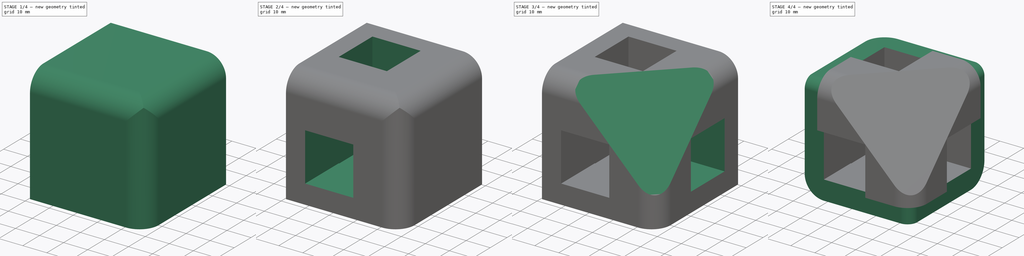
[diagram: build sequence overview — one tinted view per stage of 4, left to right]
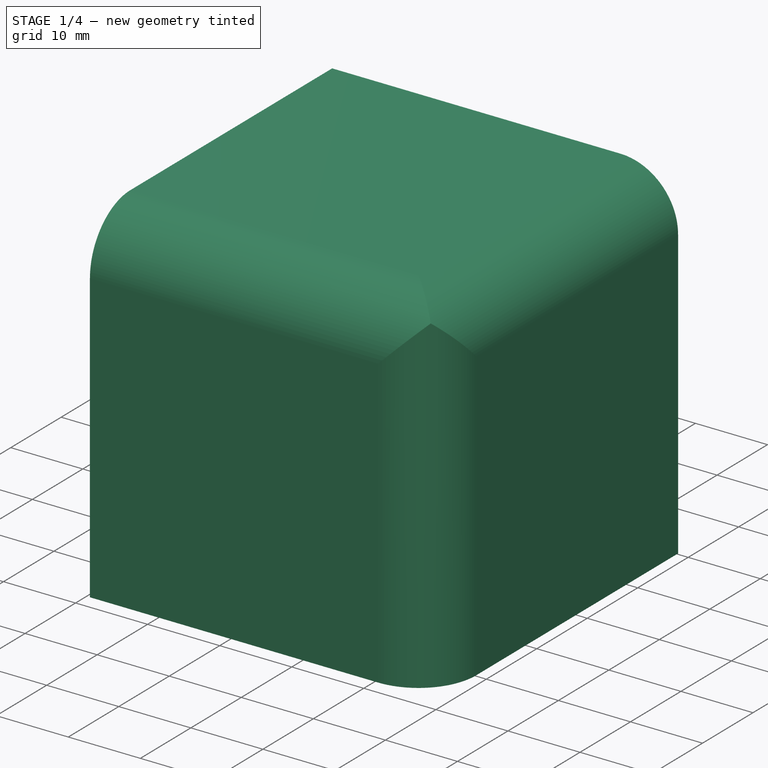
[diagram: stage 1 of 4 — iso view after this stage's code; geometry added in this stage tinted green]
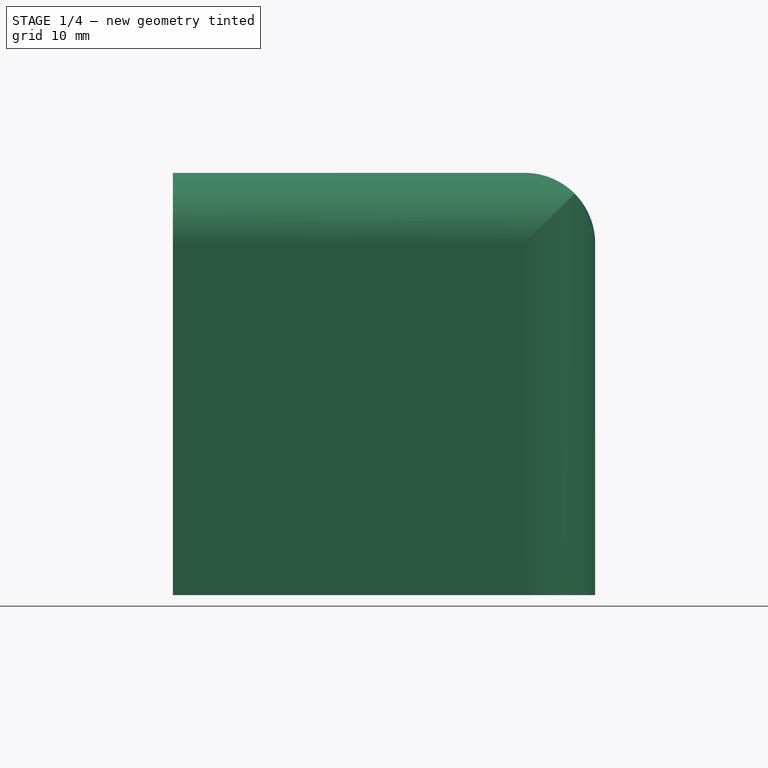
[diagram: stage 1 of 4 — front view after this stage's code; geometry added in this stage tinted green]
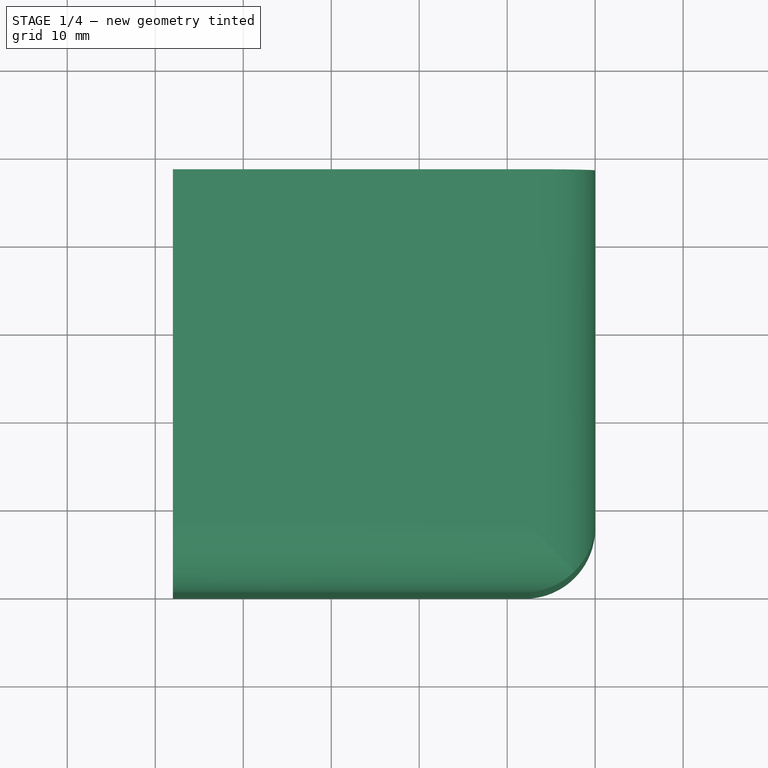
[diagram: stage 1 of 4 — top view after this stage's code; geometry added in this stage tinted green]
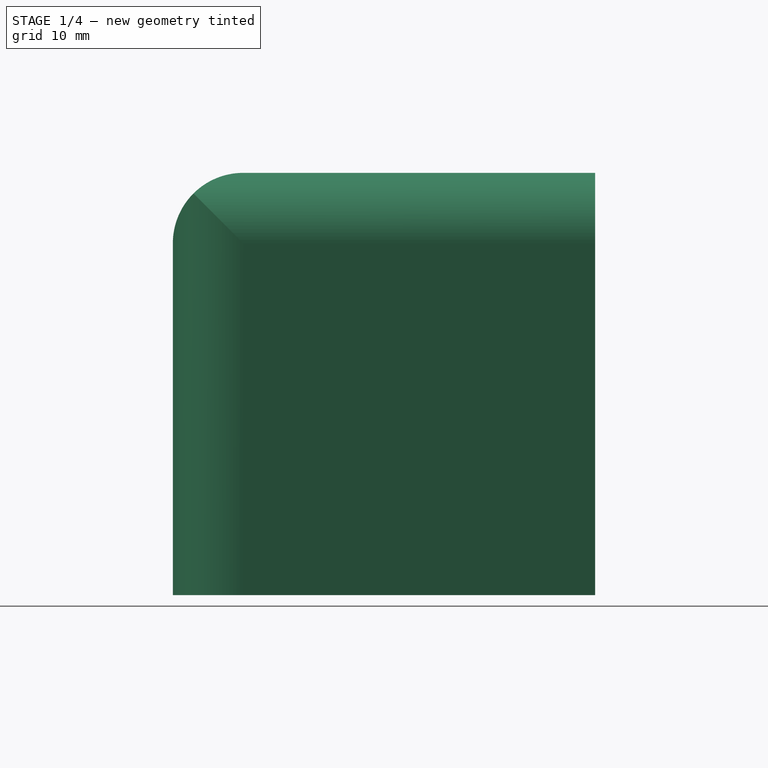
[diagram: stage 1 of 4 — right view after this stage's code; geometry added in this stage tinted green]
FCSTD DOCUMENT  (FreeCAD 1.0R39109 (Git))
Label: frame-corner
License: All rights reserved
LicenseURL: http://en.wikipedia.org/wiki/All_rights_reserved
objects: Sketcher::SketchObject×7, PartDesign::Pocket×6, PartDesign::PolarPattern×3, PartDesign::Pad×1, PartDesign::Line×1, PartDesign::Plane×1, PartDesign::Fillet×1, PartDesign::Body×1
note: 47 computed .brp shape members not serialized (recipe doc carries the construction recipe); baked Part::Feature solids carry a one-line shape summary decoded from their .brp

FEATURE [Sketcher::SketchObject] Sketch255
  ArcFitTolerance = 0
  AttachmentSupport = -> [XY_Plane256]
  FullyConstrained = true
  MakeInternals = false
  MapMode = 5
  sketch-geometry (5):
    g0: LineSegment StartX=-18 StartY=18 StartZ=0 EndX=30 EndY=18 EndZ=0
    g1: LineSegment StartX=30 StartY=18 StartZ=0 EndX=30 EndY=-30 EndZ=0
    g2: LineSegment StartX=30 StartY=-30 StartZ=0 EndX=-18 EndY=-30 EndZ=0
    g3: LineSegment StartX=-18 StartY=-30 StartZ=0 EndX=-18 EndY=18 EndZ=0
    g4: GeomPoint [constr] X=14 Y=0 Z=0
  constraints (14):
    c: Coincident(g0,g1)
    c: Coincident(g1,g2)
    c: Coincident(g2,g3)
    c: Coincident(g3,g0)
    c: Horizontal(g0)
    c: Horizontal(g2)
    c: Vertical(g1)
    c: Vertical(g3)
    c: DistanceX(g0) = -18
    c: DistanceY(g0) = 18
    c: Equal(g3,g0)
    c: PointOnObject(g4,g-1)
    c: DistanceX(g-1,g4) = 14
    c: DistanceX(g4,g0) = 16
FEATURE [PartDesign::Pad] Pad060
  Direction = (0,0,1)
  Length = 30
  Length2 = 18
  Profile = -> Sketch255
  ReferenceAxis = -> Sketch255 [N_Axis]
  Suppressed = false
  Type = 4
FEATURE [Sketcher::SketchObject] Sketch256
  ArcFitTolerance = 0
  AttachmentOffset = pos=(0,0,14) rot=(0,0,1;0rad)
  AttachmentSupport = -> [XY_Plane256]
  FullyConstrained = true
  MakeInternals = false
  MapMode = 5
  Placement = pos=(0,0,14) rot=(0,0,1;0rad)
  sketch-geometry (3):
    g0: ArcOfCircle CenterX=22 CenterY=-22 CenterZ=0 NormalX=0 NormalY=0 NormalZ=1 AngleXU=0 Radius=8 StartAngle=4.71239 EndAngle=6.28319
    g1: LineSegment StartX=22 StartY=-30 StartZ=0 EndX=30 EndY=-30 EndZ=0
    g2: LineSegment StartX=30 StartY=-30 StartZ=0 EndX=30 EndY=-22 EndZ=0
  constraints (8):
    c: Coincident(g1,g2)
    c: Vertical(g2)
    c: Horizontal(g1)
    c: Tangent(g2,g0) = -1.5708
    c: Tangent(g0,g1) = -1.5708
    c: DistanceX(g1) = 30
    c: DistanceY(g1) = -30
    c: Radius(g0) = 8
FEATURE [PartDesign::Pocket] Pocket152
  BaseFeature = -> Pad060
  Direction = (0,0,-1)
  Length = 5
  Length2 = 5
  Midplane = true
  Profile = -> Sketch256
  ReferenceAxis = -> Sketch256 [N_Axis]
  Suppressed = false
  Type = 1
FEATURE [Sketcher::SketchObject] Sketch257
  ArcFitTolerance = 0
  AttachmentOffset = pos=(0,0,0) rot=(0,-1,0;0.785398rad)
  AttachmentSupport = -> [XZ_Plane256]
  FullyConstrained = true
  MakeInternals = false
  MapMode = 5
  Placement = pos=(0,0,0) rot=(0.862856,-0.357407,-0.357407;1.71777rad)
  sketch-geometry (7):
    g0: LineSegment [constr] StartX=-7.07107 StartY=5 StartZ=0 EndX=7.07107 EndY=5 EndZ=0
    g1: LineSegment [constr] StartX=7.07107 StartY=5 StartZ=0 EndX=7.07107 EndY=-5 EndZ=0
    g2: LineSegment [constr] StartX=7.07107 StartY=-5 StartZ=0 EndX=-7.07107 EndY=-5 EndZ=0
    g3: LineSegment [constr] StartX=-7.07107 StartY=-5 StartZ=0 EndX=-7.07107 EndY=5 EndZ=0
    g4: LineSegment [constr] StartX=-7.07107 StartY=5 StartZ=0 EndX=0 EndY=12.0711 EndZ=0
    g5: LineSegment [constr] StartX=0 StartY=12.0711 StartZ=0 EndX=7.07107 EndY=5 EndZ=0
    g6: LineSegment StartX=-7.07107 StartY=-5 StartZ=0 EndX=7.07107 EndY=5 EndZ=0
  constraints (18):
    c: Coincident(g0,g1)
    c: Coincident(g1,g2)
    c: Coincident(g2,g3)
    c: Coincident(g3,g0)
    c: Horizontal(g0)
    c: Horizontal(g2)
    c: Vertical(g1)
    c: Vertical(g3)
    c: Symmetric(g1,g0,g-1)
    c: Coincident(g4,g0)
    c: PointOnObject(g4,g-2)
    c: Coincident(g5,g4)
    c: Coincident(g5,g0)
    c: Perpendicular(g5,g4)
    c: Distance(g4) = 10
    c: DistanceY(g1,g1) = 10
    c: Coincident(g6,g2)
    c: Coincident(g6,g0)
FEATURE [PartDesign::Line] DatumLine
  AttacherType = Attacher::AttachEngineLine
  AttachmentSupport = -> [Sketch257]
  Length = 20
  MapMode = 29
  Placement = pos=(0,0,0) rot=(-0.345235,0.833472,0.431437;3.49527rad)
  ResizeMode = 0
FEATURE [PartDesign::PolarPattern] PolarPattern006
  Angle = 360
  Axis = -> DatumLine
  BaseFeature = -> Pocket152
  Mode = 0
  Occurrences = 3
  Offset = 120
  Originals = -> [Pocket152]
  Suppressed = false
  TransformMode = 0
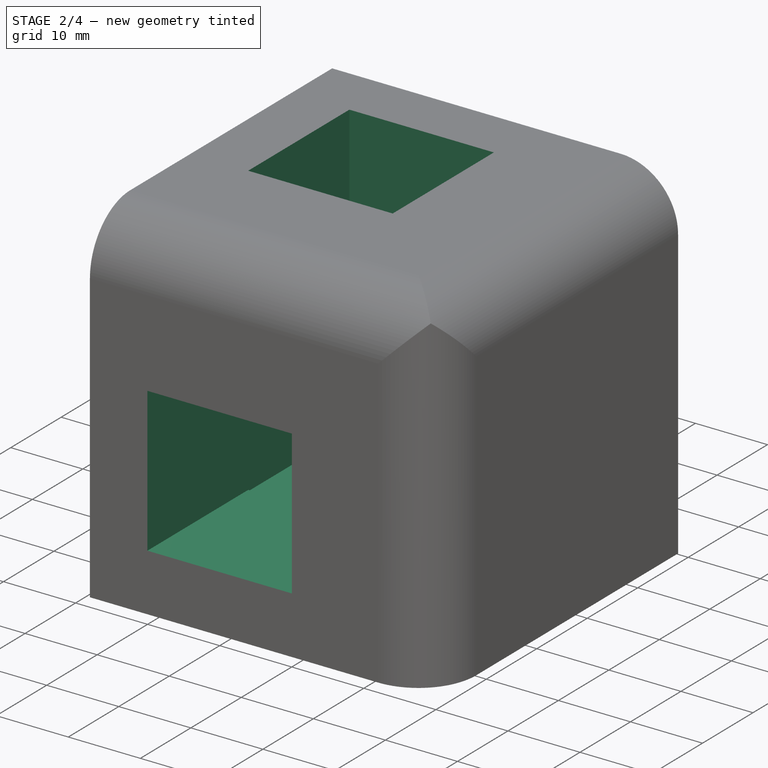
[diagram: stage 2 of 4 — iso view after this stage's code; geometry added in this stage tinted green]
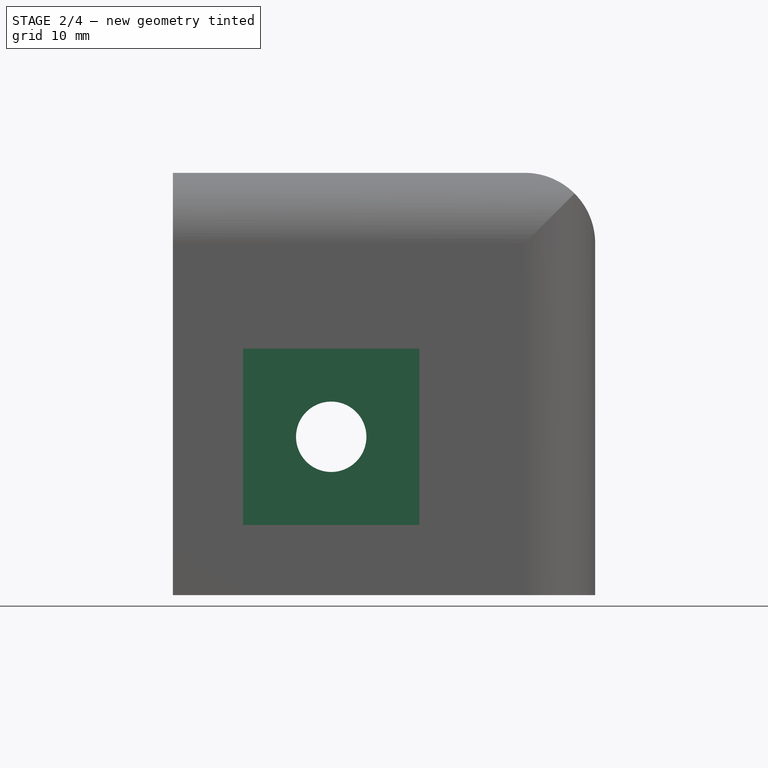
[diagram: stage 2 of 4 — front view after this stage's code; geometry added in this stage tinted green]
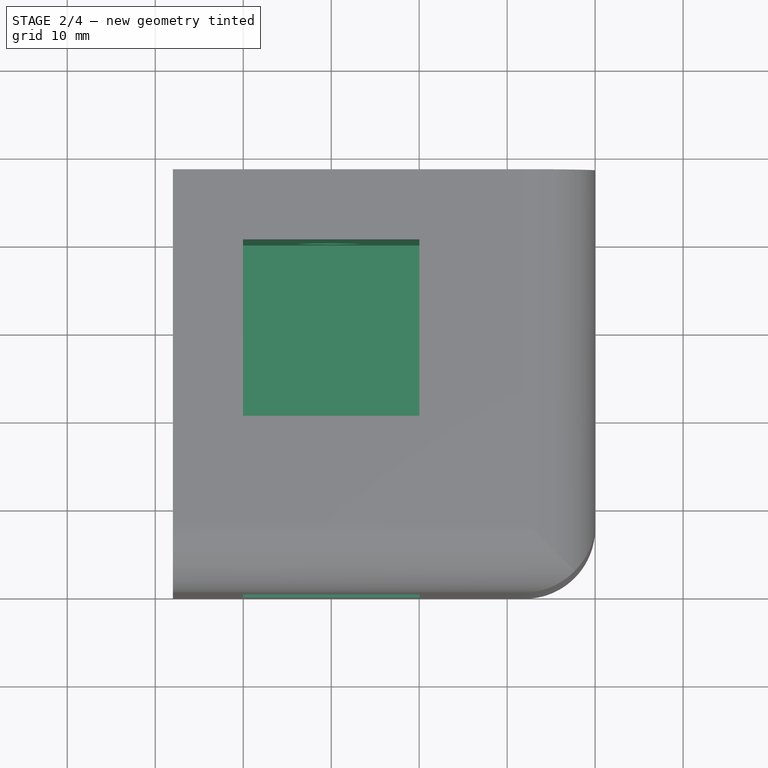
[diagram: stage 2 of 4 — top view after this stage's code; geometry added in this stage tinted green]
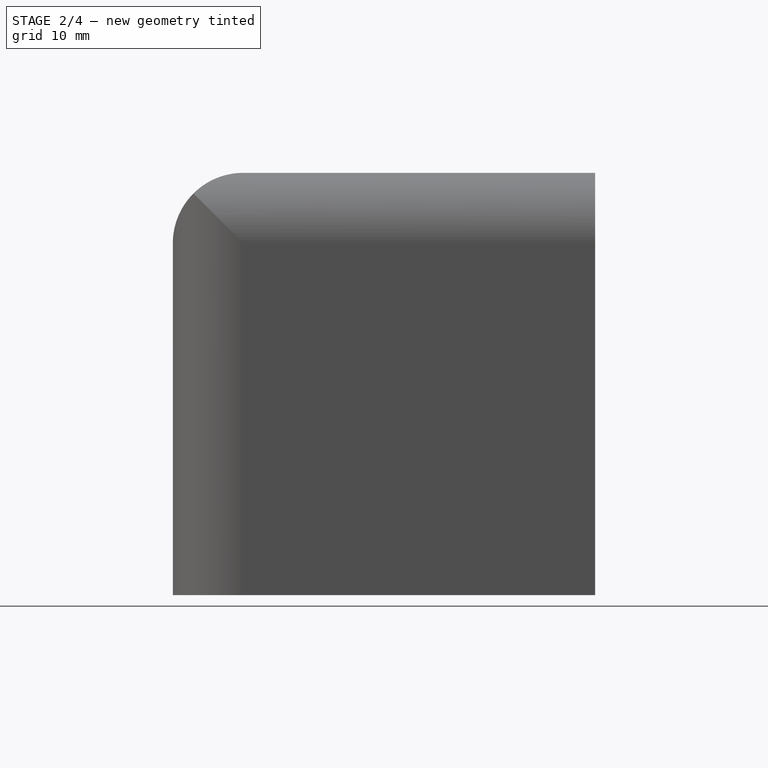
[diagram: stage 2 of 4 — right view after this stage's code; geometry added in this stage tinted green]
FEATURE [Sketcher::SketchObject] Sketch258
  ArcFitTolerance = 0
  AttachmentOffset = pos=(0,0,-10.2) rot=(0,0,1;0rad)
  AttachmentSupport = -> [XY_Plane256]
  FullyConstrained = true
  MakeInternals = false
  MapMode = 5
  Placement = pos=(0,0,-10.2) rot=(0,0,1;0rad)
  sketch-geometry (4):
    g0: LineSegment StartX=-10.025 StartY=10.025 StartZ=0 EndX=10.025 EndY=10.025 EndZ=0
    g1: LineSegment StartX=10.025 StartY=10.025 StartZ=0 EndX=10.025 EndY=-10.025 EndZ=0
    g2: LineSegment StartX=10.025 StartY=-10.025 StartZ=0 EndX=-10.025 EndY=-10.025 EndZ=0
    g3: LineSegment StartX=-10.025 StartY=-10.025 StartZ=0 EndX=-10.025 EndY=10.025 EndZ=0
  constraints (11):
    c: Coincident(g0,g1)
    c: Coincident(g1,g2)
    c: Coincident(g2,g3)
    c: Coincident(g3,g0)
    c: Horizontal(g0)
    c: Horizontal(g2)
    c: Vertical(g1)
    c: Vertical(g3)
    c: Symmetric(g1,g0,g-1)
    c: Equal(g0,g1)
    c: DistanceX(g0,g0) = 20.05
FEATURE [PartDesign::Pocket] Pocket153
  BaseFeature = -> PolarPattern006
  Direction = (0,0,-1)
  Length = 10
  Length2 = 5
  Profile = -> Sketch258
  ReferenceAxis = -> Sketch258 [N_Axis]
  Reversed = true
  Suppressed = false
  Type = 1
FEATURE [Sketcher::SketchObject] Sketch259
  ArcFitTolerance = 0
  AttachmentOffset = pos=(0,0,10) rot=(0,0,1;0rad)
  AttachmentSupport = -> [XZ_Plane256]
  FullyConstrained = true
  MakeInternals = false
  MapMode = 5
  Placement = pos=(0,-10,2.2e-15) rot=(1,0,0;1.5708rad)
  sketch-geometry (4):
    g0: LineSegment StartX=-10.025 StartY=10.025 StartZ=0 EndX=10.025 EndY=10.025 EndZ=0
    g1: LineSegment StartX=10.025 StartY=10.025 StartZ=0 EndX=10.025 EndY=-10.025 EndZ=0
    g2: LineSegment StartX=10.025 StartY=-10.025 StartZ=0 EndX=-10.025 EndY=-10.025 EndZ=0
    g3: LineSegment StartX=-10.025 StartY=-10.025 StartZ=0 EndX=-10.025 EndY=10.025 EndZ=0
  constraints (11):
    c: Coincident(g0,g1)
    c: Coincident(g1,g2)
    c: Coincident(g2,g3)
    c: Coincident(g3,g0)
    c: Horizontal(g0)
    c: Horizontal(g2)
    c: Vertical(g1)
    c: Vertical(g3)
    c: Symmetric(g1,g0,g-1)
    c: Equal(g0,g1)
    c: DistanceX(g0,g0) = 20.05
FEATURE [PartDesign::Pocket] Pocket154
  BaseFeature = -> Pocket153
  Direction = (0,1,-2e-16)
  Length = 5
  Length2 = 5
  Profile = -> Sketch259
  ReferenceAxis = -> Sketch259 [N_Axis]
  Reversed = true
  Suppressed = false
  Type = 1
FEATURE [Sketcher::SketchObject] Sketch260
  ArcFitTolerance = 0
  AttachmentSupport = -> [XZ_Plane256]
  FullyConstrained = true
  MakeInternals = false
  MapMode = 5
  Placement = pos=(0,0,0) rot=(1,0,0;1.5708rad)
  sketch-geometry (1):
    g0: Circle CenterX=0 CenterY=0 CenterZ=0 NormalX=0 NormalY=0 NormalZ=1 AngleXU=0 Radius=4
  constraints (2):
    c: Coincident(g0,g-1)
    c: Diameter(g0) = 8
FEATURE [PartDesign::Pocket] Pocket155
  BaseFeature = -> Pocket154
  Direction = (0,1,-2e-16)
  Length = 5
  Length2 = 5
  Midplane = true
  Profile = -> Sketch260
  ReferenceAxis = -> Sketch260 [N_Axis]
  Suppressed = false
  Type = 1
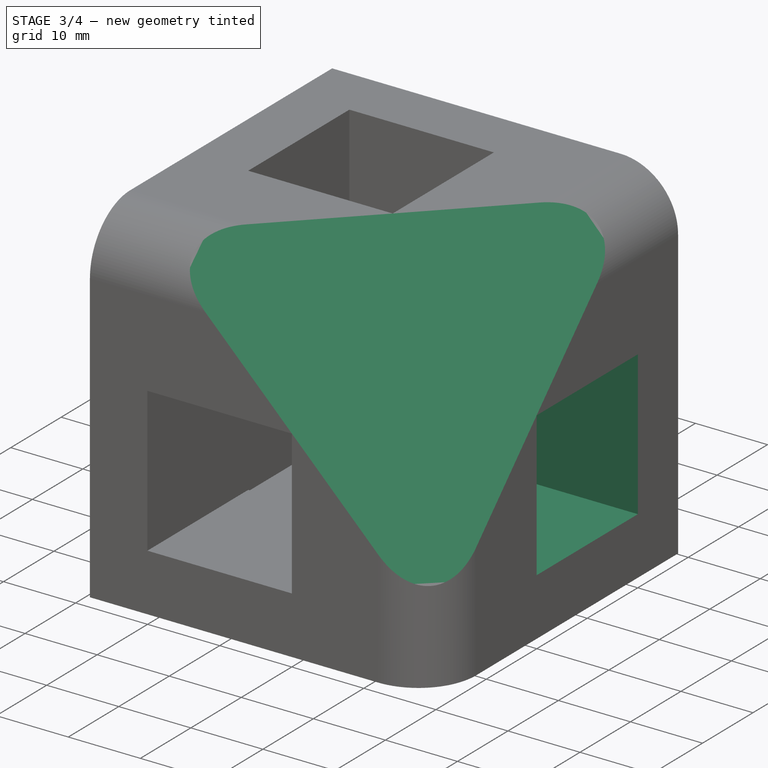
[diagram: stage 3 of 4 — iso view after this stage's code; geometry added in this stage tinted green]
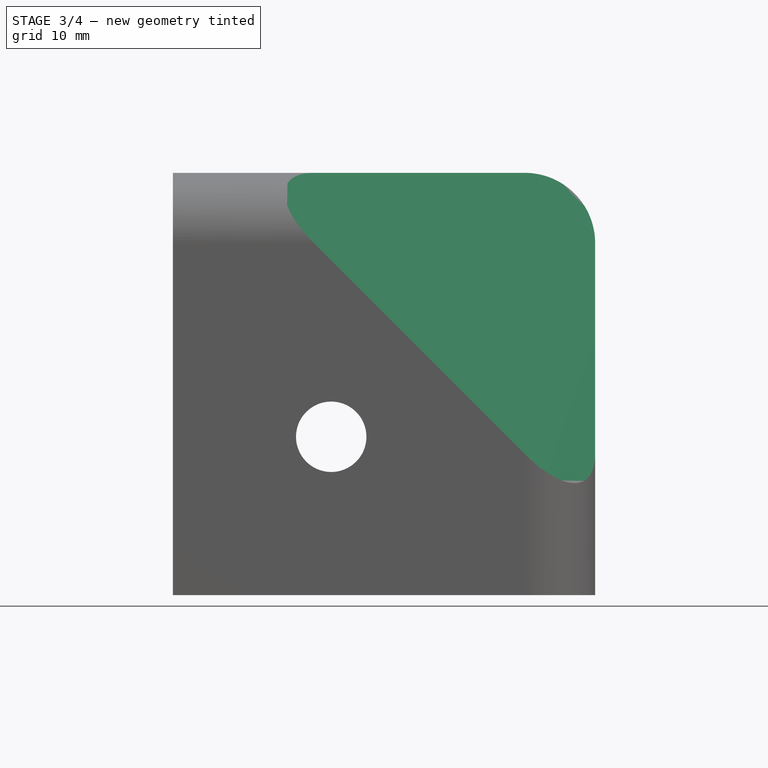
[diagram: stage 3 of 4 — front view after this stage's code; geometry added in this stage tinted green]
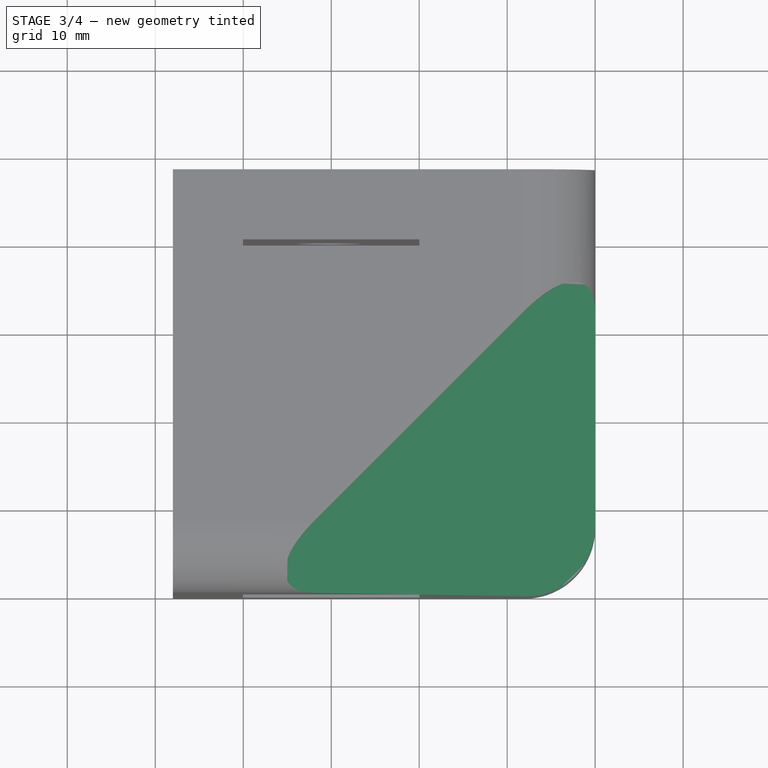
[diagram: stage 3 of 4 — top view after this stage's code; geometry added in this stage tinted green]
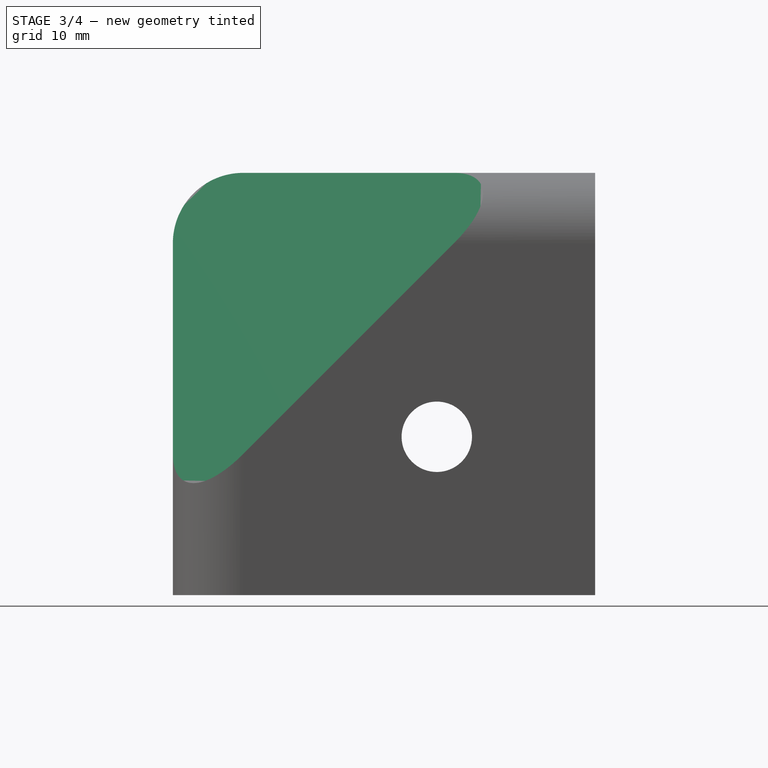
[diagram: stage 3 of 4 — right view after this stage's code; geometry added in this stage tinted green]
FEATURE [PartDesign::PolarPattern] PolarPattern007
  Angle = 90
  Axis = -> Z_Axis256
  BaseFeature = -> Pocket155
  Mode = 0
  Occurrences = 2
  Offset = 120
  Originals = -> [Pocket155,Pocket154]
  Suppressed = false
  TransformMode = 0
FEATURE [PartDesign::Plane] DatumPlane001
  AttachmentSupport = -> [PolarPattern007]
  Length = 94.4981
  MapMode = 13
  Placement = pos=(16.6833,-16.6833,16.6833) rot=(0.742906,0.307722,0.594473;1.21712rad)
  ResizeMode = 0
  Width = 106.531
FEATURE [PartDesign::Pocket] Pocket156
  BaseFeature = -> PolarPattern007
  Direction = (-0.57735,0.57735,-0.57735)
  Length = 5
  Length2 = 5
  Profile = -> DatumPlane001
  Reversed = true
  Suppressed = false
  Type = 1
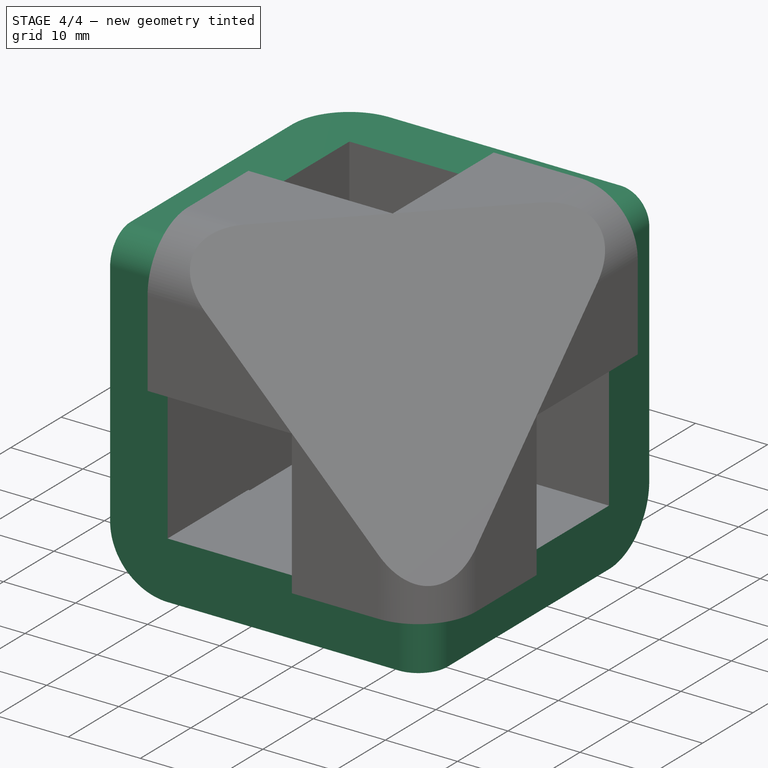
[diagram: stage 4 of 4 — iso view after this stage's code; geometry added in this stage tinted green]
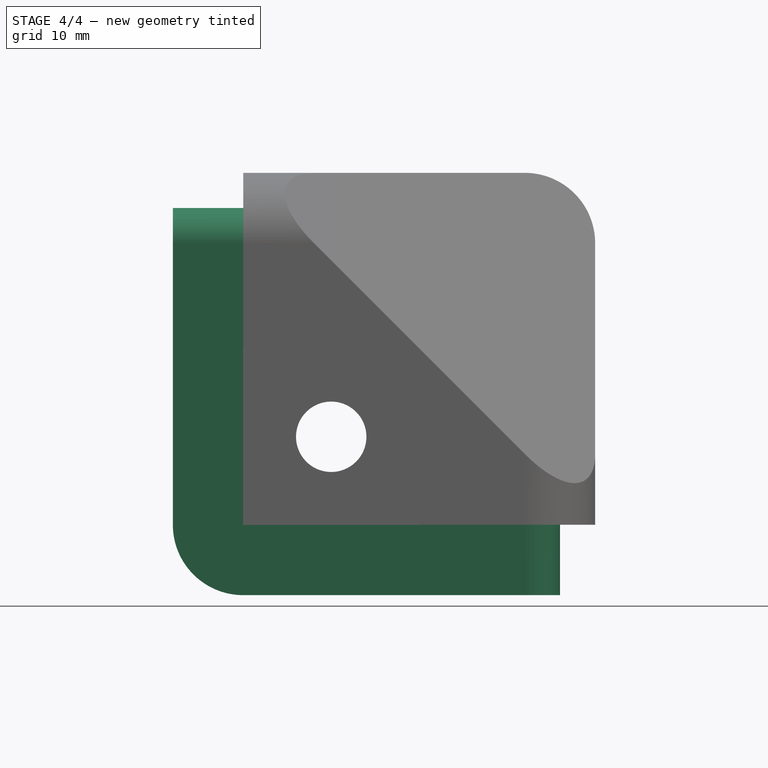
[diagram: stage 4 of 4 — front view after this stage's code; geometry added in this stage tinted green]
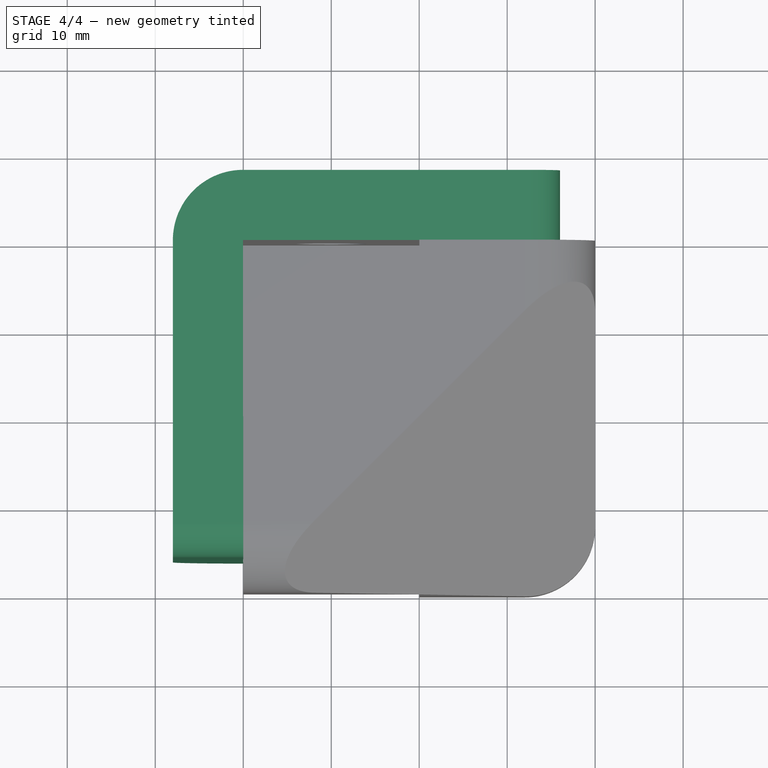
[diagram: stage 4 of 4 — top view after this stage's code; geometry added in this stage tinted green]
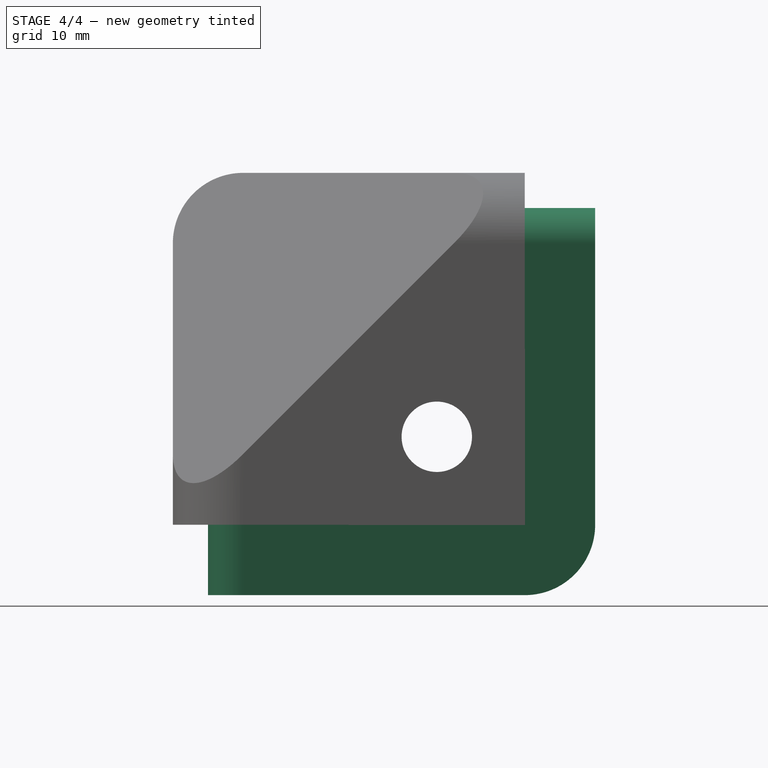
[diagram: stage 4 of 4 — right view after this stage's code; geometry added in this stage tinted green]
FEATURE [PartDesign::Fillet] Fillet002
  Base = -> Pocket156 [Edge10,Edge1,Edge2]
  BaseFeature = -> Pocket156
  Radius = 8
  SupportTransform = false
  Suppressed = false
  UseAllEdges = false
FEATURE [Sketcher::SketchObject] Sketch
  ArcFitTolerance = 1e-06
  AttachmentOffset = pos=(0,0,-10) rot=(0,0,1;0rad)
  AttachmentSupport = -> [YZ_Plane256]
  FullyConstrained = true
  MakeInternals = false
  MapMode = 5
  Placement = pos=(-10,0,0) rot=(0.57735,0.57735,0.57735;2.0944rad)
  sketch-geometry (8):
    g0: GeomPoint X=-26 Y=26 Z=0
    g1: ArcOfCircle CenterX=-22 CenterY=22 CenterZ=0 NormalX=0 NormalY=0 NormalZ=1 AngleXU=0 Radius=4 StartAngle=1.5708 EndAngle=3.14159
    g2: LineSegment StartX=-22 StartY=26 StartZ=0 EndX=18 EndY=26 EndZ=0
    g3: LineSegment StartX=18 StartY=26 StartZ=0 EndX=18 EndY=30 EndZ=0
    g4: LineSegment StartX=18 StartY=30 StartZ=0 EndX=-30 EndY=30 EndZ=0
    g5: LineSegment StartX=-30 StartY=30 StartZ=0 EndX=-30 EndY=-18 EndZ=0
    g6: LineSegment StartX=-30 StartY=-18 StartZ=0 EndX=-26 EndY=-18 EndZ=0
    g7: LineSegment StartX=-26 StartY=-18 StartZ=0 EndX=-26 EndY=22 EndZ=0
  constraints (22):
    c: DistanceY(g0) = 26
    c: Tangent(g1,g2) = 1.5708
    c: Coincident(g2,g3)
    c: Vertical(g3)
    c: Coincident(g3,g4)
    c: Horizontal(g4)
    c: Coincident(g4,g5)
    c: Vertical(g5)
    c: Coincident(g5,g6)
    c: Coincident(g6,g7)
    c: Vertical(g7)
    c: Tangent(g7,g1) = 1.5708
    c: Equal(g4,g5)
    c: DistanceX(g4) = -30
    c: Horizontal(g2)
    c: DistanceX(g4,g0) = 4
    c: PointOnObject(g0,g7)
    c: PointOnObject(g0,g2)
    c: DistanceX(g4,g1) = 8
    c: Horizontal(g6)
    c: DistanceY(g0,g4) = 4
    c: DistanceX(g2) = 18
FEATURE [PartDesign::Pocket] Pocket
  BaseFeature = -> Fillet002
  Direction = (-1,0,0)
  Length = 5
  Length2 = 5
  Profile = -> Sketch
  ReferenceAxis = -> Sketch [N_Axis]
  Suppressed = false
  Type = 1
FEATURE [PartDesign::PolarPattern] PolarPattern
  Angle = 360
  Axis = -> DatumLine
  BaseFeature = -> Pocket
  Mode = 0
  Occurrences = 3
  Offset = 120
  Originals = -> [Pocket]
  Refine = true
  Suppressed = false
  TransformMode = 0
FEATURE [PartDesign::Body] Body123  label="frame-corner"
  AllowCompound = false
  Group = -> [Sketch255,Pad060,Sketch256,Pocket152,Sketch257,DatumLine,PolarPattern006,Sketch258,Pocket153,Sketch259,Pocket154,Sketch260,Pocket155,PolarPattern007,DatumPlane001,Pocket156,Fillet002,Sketch,Pocket,PolarPattern]
  Origin = -> Origin257
  Tip = -> PolarPattern
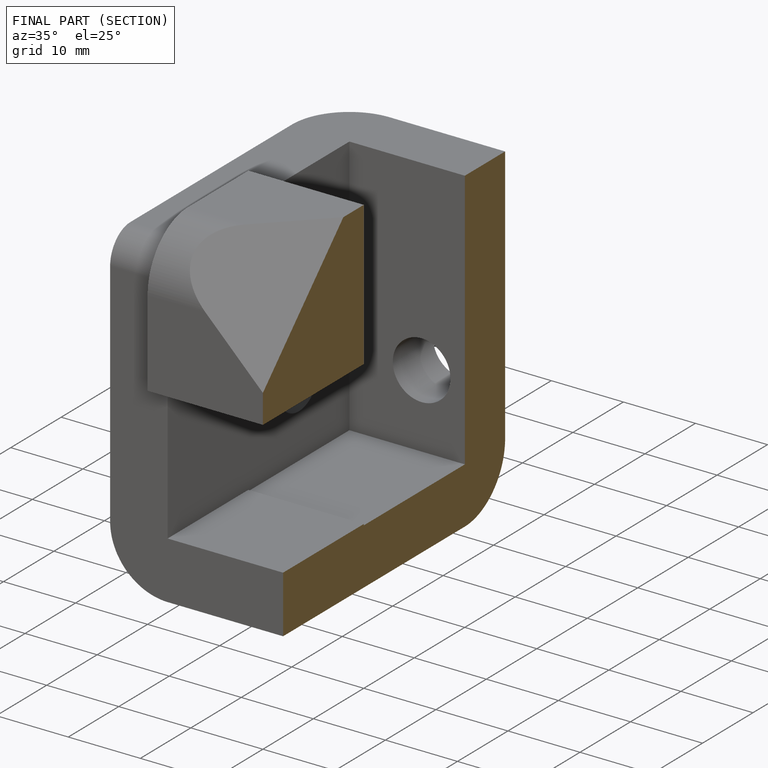
[diagram: finished part — half-section view (interior)]
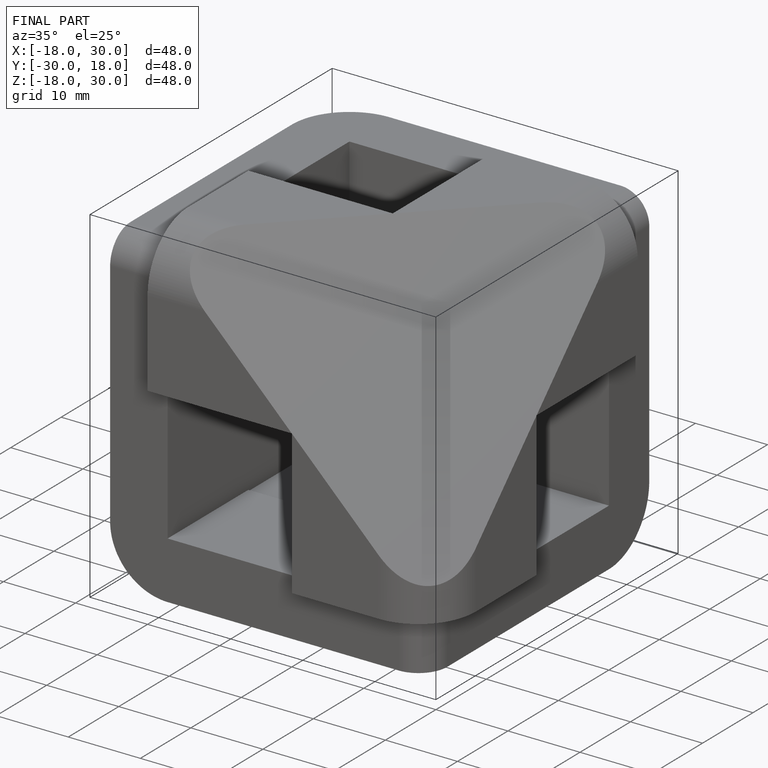
[diagram: finished part — iso view with bounding-box wireframe]
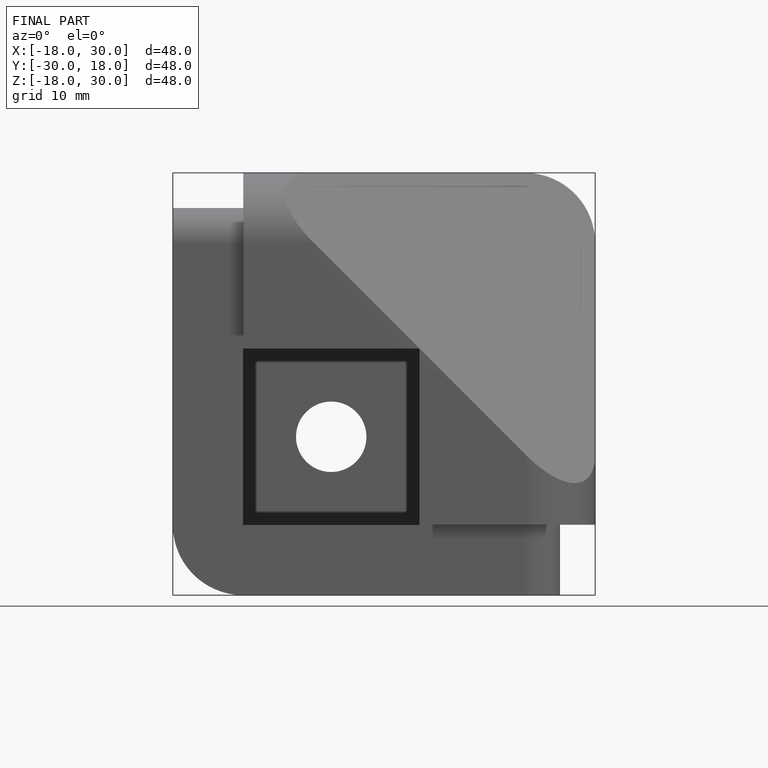
[diagram: finished part — front view with bounding-box wireframe]
